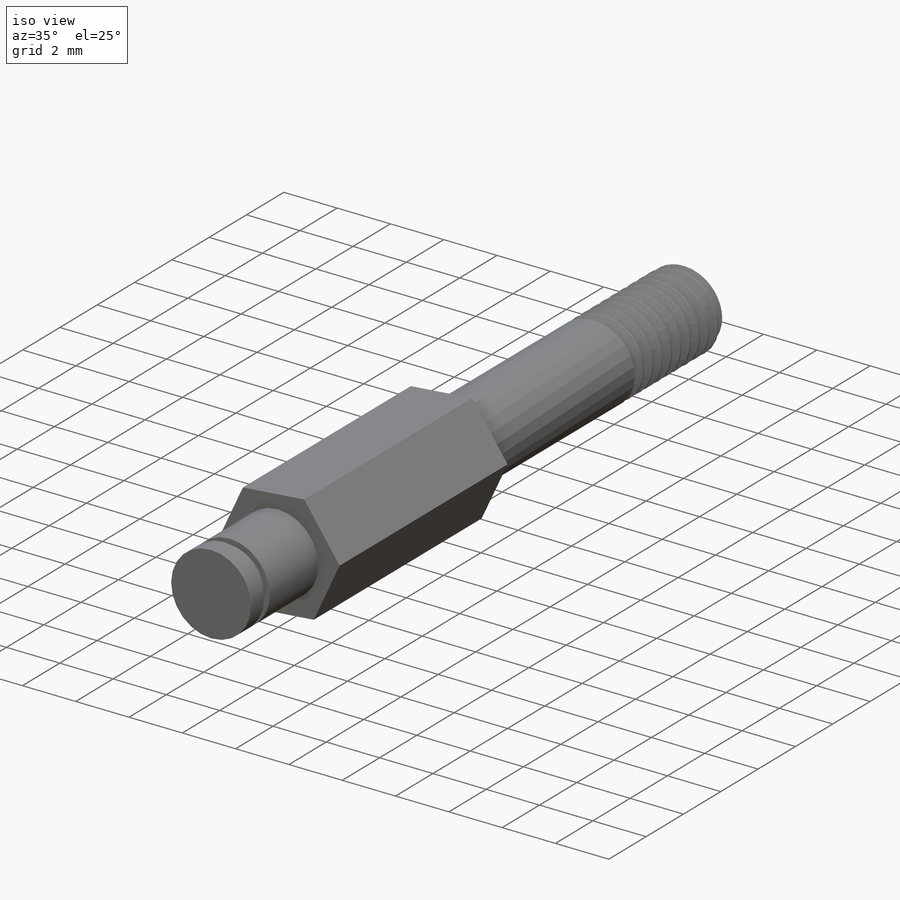
[diagram: iso view]
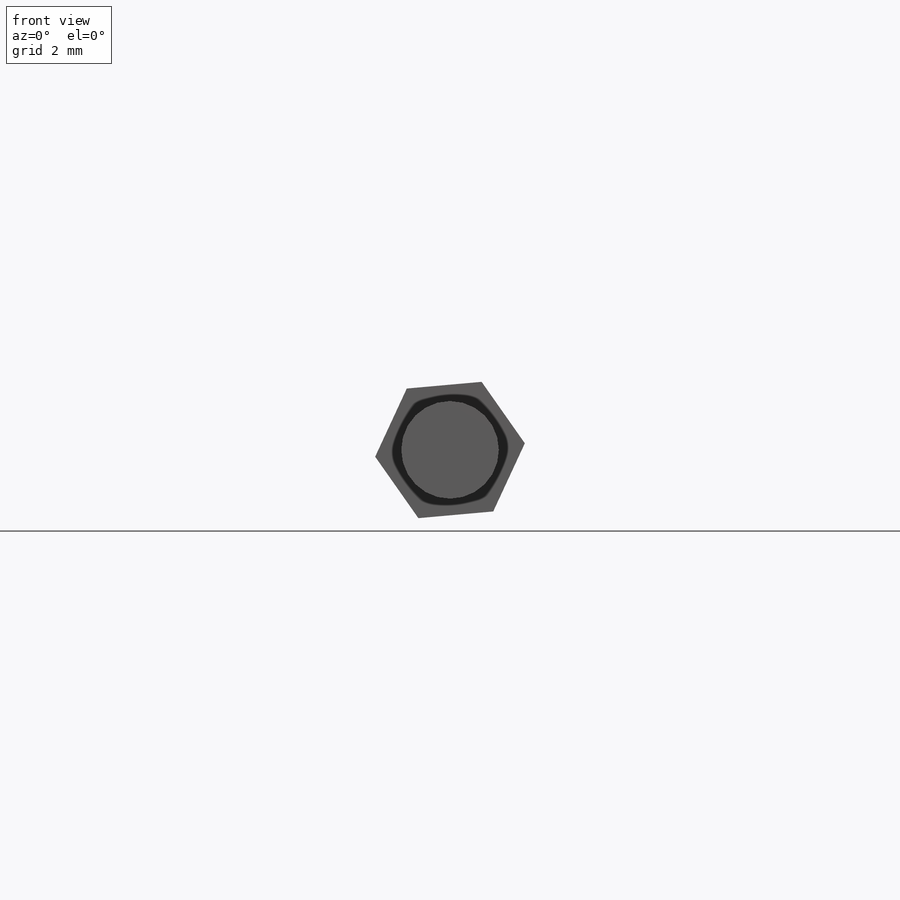
[diagram: front view]
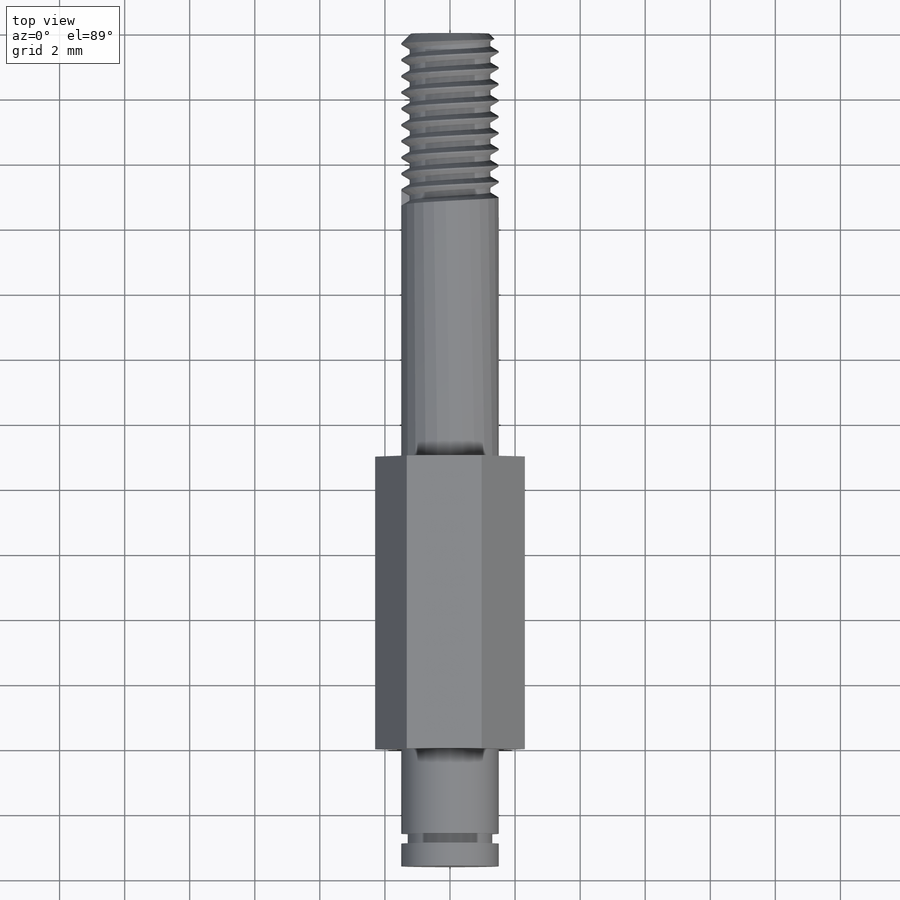
[diagram: top view]
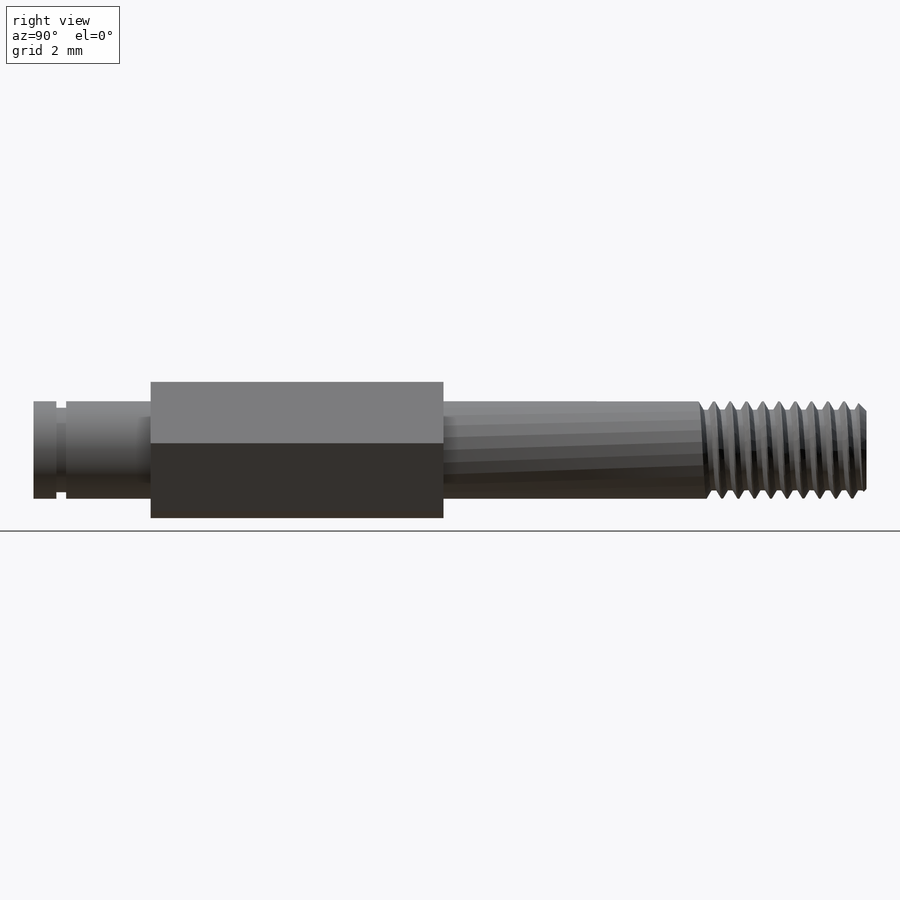
[diagram: right view]
SOLIDWORKS PART (.sldprt)
format: sldprt  version: not decoded by parser v0  size: 384,000 bytes
history: native  units: mm
features: sketch x6, plane x4, extrude x3, material x1, cut_extrude x1, chamfer x1, helix x1, sweep x1 (+10 scaffold rows collapsed)
feature tree (28):
  scaffold x10  (default folders/planes/origin — collapsed)
  material  "材质 <未指定>"
  plane  "前视基准面"
  plane  "上视基准面"
  plane  "右视基准面"
  sketch  "草图1"  dims[D1=3.0mm]
  extrude  "凸台-拉伸1"  Depth=3.6mm
  sketch  "草图2"  dims[D1=4.0mm]
  extrude  "凸台-拉伸2"  Depth=9mm
  sketch  "草图3"  dims[D1=3.0mm]
  extrude  "凸台-拉伸3"  Depth=13mm
  plane  "基准面1"  Offset=2.6mm
  sketch  "草图4"  dims[D1=2.6mm]
  cut_extrude  "切除-拉伸1"  Depth=0.3mm
  chamfer  "倒角1"  Distance=0.3mm Angle=45deg
  sketch  "草图5"  dims[D1=3.0mm]
  helix  "螺旋线/涡状线1"  Pitch=5mm
  sketch  "草图6"  dims[c1.D1=0.3mm c1.D2=~0.286566mm c2.D2=135.0deg c3.D2=0.15mm c3.D3=0.38mm]
  sweep  "切除-扫描1"
decode coverage: 12 of 13 modeling features carry decoded parameters
note: ~ marks probable driven/reference dimensions
note: suppression state not decoded; provenance and decode notes live in map.json
